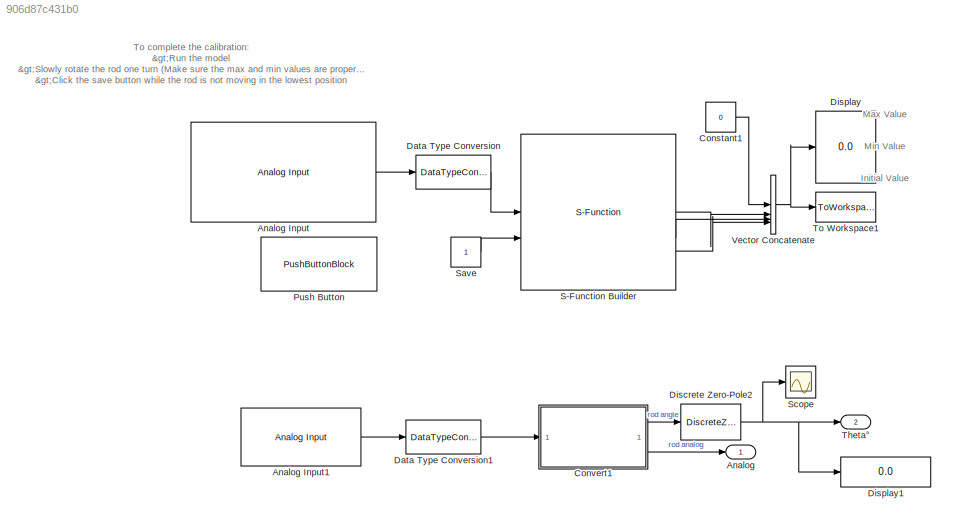
MODEL slx_906d87c431b0
KIND model
CONFIG AbsTol = auto
CONFIG EnableMultiTasking = on
CONFIG FixedStep = Tc
CONFIG MaxStep = auto
CONFIG MinStep = auto
CONFIG RelTol = 1e-3
CONFIG SampleTimeConstraint = Unconstrained
CONFIG SolverName = FixedStepAuto
CONFIG StartTime = 0.0
CONFIG StopTime = inf
BLOCK [Outport] Analog
BLOCK [Reference] Analog Input  REF=arduinolib/Analog Input
  SourceBlock = arduinolib/Analog Input
  SourceType = Arduino Analog Input
BLOCK [Reference] Analog Input1  REF=arduinolib/Analog Input
  Commented = on
  SourceBlock = arduinolib/Analog Input
  SourceType = Arduino Analog Input
BLOCK [Constant] Constant1
  Value = 0
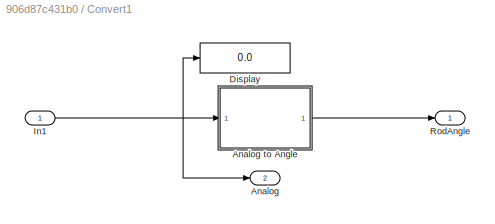
BLOCK [SubSystem] Convert1
  Commented = on
BLOCK [Outport] Convert1/Analog
  Port = 2
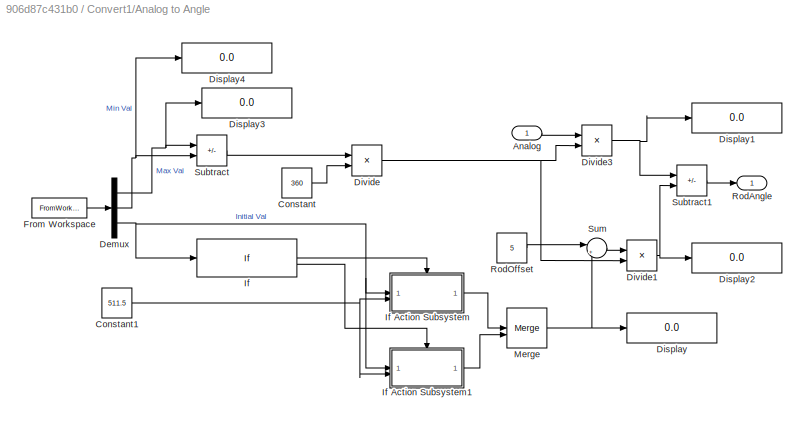
BLOCK [SubSystem] Convert1/Analog to Angle
BLOCK [Inport] Convert1/Analog to Angle/Analog
BLOCK [Constant] Convert1/Analog to Angle/Constant
  Value = 360
BLOCK [Constant] Convert1/Analog to Angle/Constant1
  Value = 511.5
BLOCK [Demux] Convert1/Analog to Angle/Demux
  Outputs = 3
BLOCK [Display] Convert1/Analog to Angle/Display
  Decimation = 1
BLOCK [Display] Convert1/Analog to Angle/Display1
  Decimation = 1
BLOCK [Display] Convert1/Analog to Angle/Display2
  Decimation = 1
BLOCK [Display] Convert1/Analog to Angle/Display3
  Decimation = 1
BLOCK [Display] Convert1/Analog to Angle/Display4
  Decimation = 1
BLOCK [Product] Convert1/Analog to Angle/Divide
  Inputs = */
BLOCK [Product] Convert1/Analog to Angle/Divide1
  Inputs = */
BLOCK [Product] Convert1/Analog to Angle/Divide3
  Inputs = */
BLOCK [FromWorkspace] Convert1/Analog to Angle/From Workspace
  VariableName = Calibration
BLOCK [If] Convert1/Analog to Angle/If
  IfExpression = u1 < 511.5
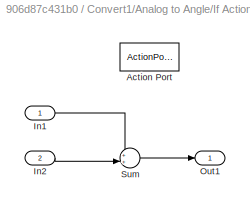
BLOCK [SubSystem] Convert1/Analog to Angle/If Action Subsystem
  TreatAsAtomicUnit = on
BLOCK [ActionPort] Convert1/Analog to Angle/If Action Subsystem/Action Port
  ActionPortLabel = if(u1 < 511.5)
BLOCK [Inport] Convert1/Analog to Angle/If Action Subsystem/In1
BLOCK [Inport] Convert1/Analog to Angle/If Action Subsystem/In2
  Port = 2
BLOCK [Outport] Convert1/Analog to Angle/If Action Subsystem/Out1
  VectorParamsAs1DForOutWhenUnconnected = off
BLOCK [Sum] Convert1/Analog to Angle/If Action Subsystem/Sum
  Inputs = ++|
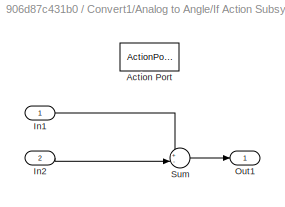
BLOCK [SubSystem] Convert1/Analog to Angle/If Action Subsystem1
  TreatAsAtomicUnit = on
BLOCK [ActionPort] Convert1/Analog to Angle/If Action Subsystem1/Action Port
  ActionPortLabel = else
BLOCK [Inport] Convert1/Analog to Angle/If Action Subsystem1/In1
BLOCK [Inport] Convert1/Analog to Angle/If Action Subsystem1/In2
  Port = 2
BLOCK [Outport] Convert1/Analog to Angle/If Action Subsystem1/Out1
  VectorParamsAs1DForOutWhenUnconnected = off
BLOCK [Sum] Convert1/Analog to Angle/If Action Subsystem1/Sum
  Inputs = +-|
BLOCK [Merge] Convert1/Analog to Angle/Merge
BLOCK [Outport] Convert1/Analog to Angle/RodAngle
BLOCK [Constant] Convert1/Analog to Angle/RodOffset
  Value = 5
BLOCK [Sum] Convert1/Analog to Angle/Subtract
  IconShape = rectangular
  Inputs = +-
BLOCK [Sum] Convert1/Analog to Angle/Subtract1
  IconShape = rectangular
  Inputs = +-
BLOCK [Sum] Convert1/Analog to Angle/Sum
  Inputs = |++
BLOCK [Display] Convert1/Display
  Decimation = 1
BLOCK [Inport] Convert1/In1
BLOCK [Outport] Convert1/RodAngle
BLOCK [DataTypeConversion] Data Type Conversion
  RndMeth = Floor
  SaturateOnIntegerOverflow = off
BLOCK [DataTypeConversion] Data Type Conversion1
  Commented = on
  RndMeth = Floor
  SaturateOnIntegerOverflow = off
BLOCK [DiscreteZeroPole] Discrete Zero-Pole2
  Commented = on
  Gain = 15*Tc/2
  Poles = [e^(-15*Tc)]
  SampleTime = -1
  Zeros = [-e^(-15*Tc)]
BLOCK [Display] Display
  Decimation = 1
  NameLocation = top
BLOCK [Display] Display1
  Commented = on
  Decimation = 1
BLOCK [PushButtonBlock] Push Button
  ButtonText = Save
  LabelPosition = Top
  OffValue = 1.000000
BLOCK [S-Function] S-Function Builder
  CopyFcn = set_param(gcbh,'LinkStatus','none')
  EnableBusSupport = off
  FunctionName = PotCalibration
  InitFcn = try, set_param(gcb,'FunctionName','PotCalibration'), end
  OpenFcn = sfunctionwizard(gcbh)
  PreSaveFcn = try, set_param(gcb,'FunctionName','PotCalibration'), end
  SFcnIsStateOwnerBlock = off
  SFunctionDeploymentMode = off
  SFunctionModules = PotCalibration_wrapper
BLOCK [Constant] Save
BLOCK [Scope] Scope
  Commented = on
  Floating = off
  NumInputPorts = 1
  ScopeSpecificationString = Simulink.scopes.TimeScopeBlockCfg('CurrentConfiguration', extmgr.ConfigurationSet(extmgr.Configuration('Core','General UI',true),extmgr.Configuration('Core','Source UI',true),extmgr.Configuration('Sources','WiredSimulink',true),extmgr.Configuration('Visuals','Time Domain',true,'SerializedDisplays',{struct('MinYLimReal','-0.79684','MaxYLimReal','0.76975','YLabelReal','','MinYLimMag','0.00000','MaxY...<+1457ch>
BLOCK [Outport] Theta°
  Port = 2
BLOCK [ToWorkspace] To Workspace1
  FixptAsFi = on
  MaxDataPoints = 1
  SampleTime = -1
  VariableName = Calibration
BLOCK [Concatenate] Vector Concatenate
  NumInputs = 4
ANNOTATION (root): To complete the calibration: >Run the model >Slowly rotate the rod one turn (Make sure the max and min values are properly saved) >Click the save button while the rod is not moving in the lowest position
ANNOTATION (root): Initial Value
ANNOTATION (root): Max Value
ANNOTATION (root): Min Value
LINE Analog Input1:1 -> Data Type Conversion1:1
LINE Analog Input:1 -> Data Type Conversion:1
LINE Constant1:1 -> Vector Concatenate:1
LINE Convert1/Analog to Angle/Analog:1 -> Convert1/Analog to Angle/Divide3:1
NET Convert1/Analog to Angle/Constant1:1 -> Convert1/Analog to Angle/If Action Subsystem1:2, Convert1/Analog to Angle/If Action Subsystem:2
LINE Convert1/Analog to Angle/Constant:1 -> Convert1/Analog to Angle/Divide:2
NET Convert1/Analog to Angle/Demux:1 -> Convert1/Analog to Angle/Display3:1, Convert1/Analog to Angle/Subtract:1
NET Convert1/Analog to Angle/Demux:2 -> Convert1/Analog to Angle/Display4:1, Convert1/Analog to Angle/Subtract:2
NET Convert1/Analog to Angle/Demux:3 -> Convert1/Analog to Angle/If Action Subsystem1:1, Convert1/Analog to Angle/If Action Subsystem:1, Convert1/Analog to Angle/If:1
NET Convert1/Analog to Angle/Divide1:1 -> Convert1/Analog to Angle/Display2:1, Convert1/Analog to Angle/Subtract1:2
NET Convert1/Analog to Angle/Divide3:1 -> Convert1/Analog to Angle/Display1:1, Convert1/Analog to Angle/Subtract1:1
NET Convert1/Analog to Angle/Divide:1 -> Convert1/Analog to Angle/Divide1:2, Convert1/Analog to Angle/Divide3:2
LINE Convert1/Analog to Angle/From Workspace:1 -> Convert1/Analog to Angle/Demux:1
LINE Convert1/Analog to Angle/If Action Subsystem/In1:1 -> Convert1/Analog to Angle/If Action Subsystem/Sum:1
LINE Convert1/Analog to Angle/If Action Subsystem/In2:1 -> Convert1/Analog to Angle/If Action Subsystem/Sum:2
LINE Convert1/Analog to Angle/If Action Subsystem/Sum:1 -> Convert1/Analog to Angle/If Action Subsystem/Out1:1
LINE Convert1/Analog to Angle/If Action Subsystem1/In1:1 -> Convert1/Analog to Angle/If Action Subsystem1/Sum:1
LINE Convert1/Analog to Angle/If Action Subsystem1/In2:1 -> Convert1/Analog to Angle/If Action Subsystem1/Sum:2
LINE Convert1/Analog to Angle/If Action Subsystem1/Sum:1 -> Convert1/Analog to Angle/If Action Subsystem1/Out1:1
LINE Convert1/Analog to Angle/If Action Subsystem1:1 -> Convert1/Analog to Angle/Merge:2
LINE Convert1/Analog to Angle/If Action Subsystem:1 -> Convert1/Analog to Angle/Merge:1
LINE Convert1/Analog to Angle/If:1 -> Convert1/Analog to Angle/If Action Subsystem:ifaction
LINE Convert1/Analog to Angle/If:2 -> Convert1/Analog to Angle/If Action Subsystem1:ifaction
NET Convert1/Analog to Angle/Merge:1 -> Convert1/Analog to Angle/Display:1, Convert1/Analog to Angle/Sum:2
LINE Convert1/Analog to Angle/RodOffset:1 -> Convert1/Analog to Angle/Sum:1
LINE Convert1/Analog to Angle/Subtract1:1 -> Convert1/Analog to Angle/RodAngle:1
LINE Convert1/Analog to Angle/Subtract:1 -> Convert1/Analog to Angle/Divide:1
LINE Convert1/Analog to Angle/Sum:1 -> Convert1/Analog to Angle/Divide1:1
LINE Convert1/Analog to Angle:1 -> Convert1/RodAngle:1
NET Convert1/In1:1 -> Convert1/Analog to Angle:1, Convert1/Analog:1, Convert1/Display:1
LINE Convert1:1 -> Discrete Zero-Pole2:1
LINE Convert1:2 -> Analog:1
LINE Data Type Conversion1:1 -> Convert1:1
LINE Data Type Conversion:1 -> S-Function Builder:1
NET Discrete Zero-Pole2:1 -> Display1:1, Scope:1, Theta°:1
LINE S-Function Builder:1 -> Vector Concatenate:2
LINE S-Function Builder:2 -> Vector Concatenate:3
LINE S-Function Builder:3 -> Vector Concatenate:4
LINE Save:1 -> S-Function Builder:2
NET Vector Concatenate:1 -> Display:1, To Workspace1:1
note: NET lines group one-source signal fan-out (src -> all destinations, sorted); 1:1 wires keep LINE
